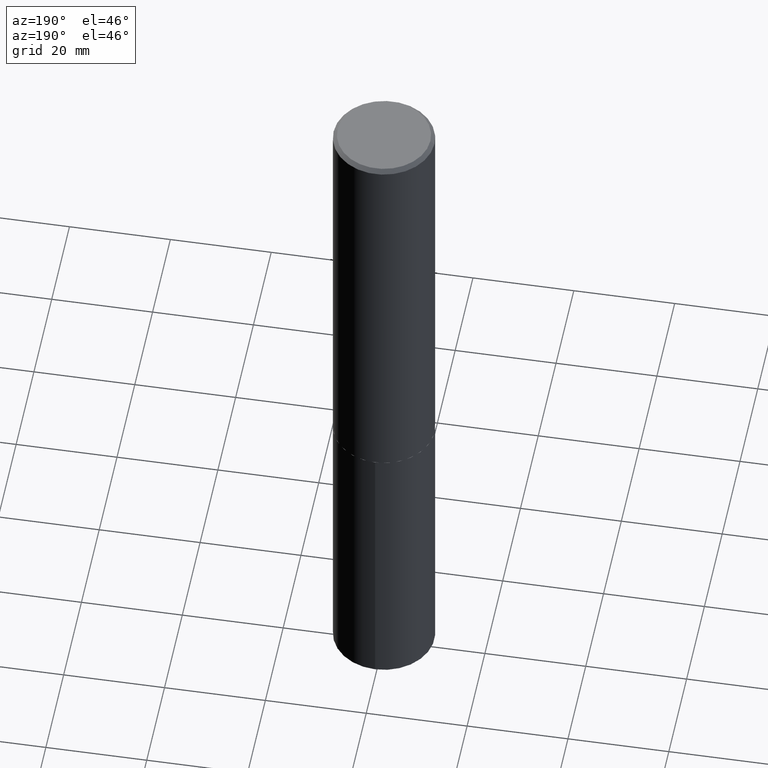
[diagram: clean part render]
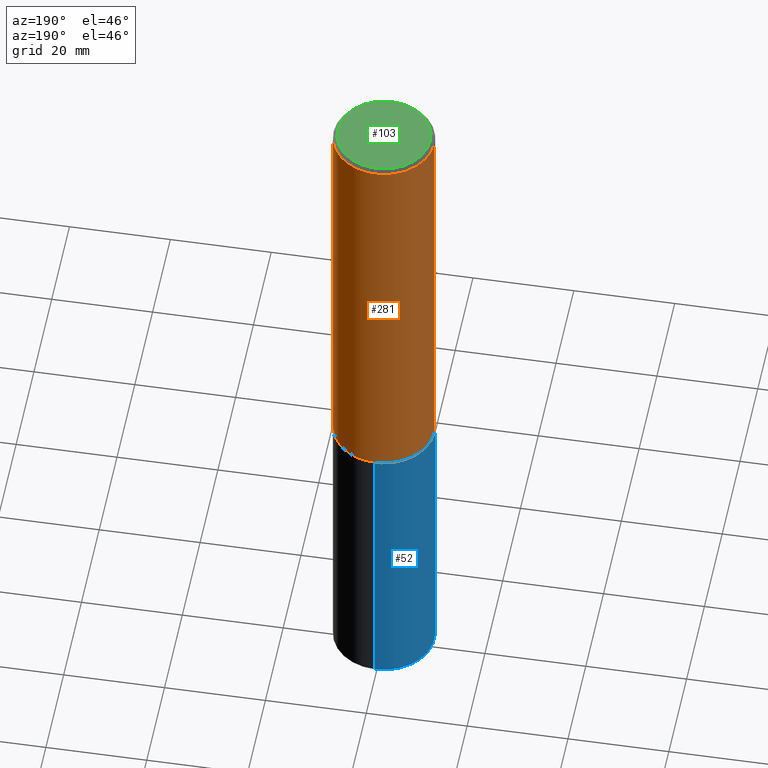
[diagram: same view with three faces highlighted in distinct colors, each labeled with its STEP entity id]
A machine part, auxiliary view with three faces highlighted in distinct colors.
Their STEP definitions:

[orange] entity #281 — the highlighted cylindrical surface (partial cylindrical patch) has radius 10 mm, axis along (-0, 0, 1).
#2 = CARTESIAN_POINT ( 'NONE',  ( 0.000000000000000000, 0.000000000000000000, 0.000000000000000000 ) ) ;
#20 = AXIS2_PLACEMENT_3D ( 'NONE', #166, #360, #193 ) ;
#25 = DIRECTION ( 'NONE',  ( -2.445468806185136597E-29, 3.491481338843145583E-15, 1.000000000000000000 ) ) ;
#33 = DIRECTION ( 'NONE',  ( 1.000000000000000000, -6.982962677686266711E-15, 4.876176775795935793E-29 ) ) ;
#46 = EDGE_CURVE ( 'NONE', #350, #285, #150, .T. ) ;
#47 = CARTESIAN_POINT ( 'NONE',  ( 0.3937000000000000499, -2.858301198043932317E-15, -0.03125000000000018735 ) ) ;
#81 = ORIENTED_EDGE ( 'NONE', *, *, #46, .T. ) ;
#87 = EDGE_CURVE ( 'NONE', #118, #114, #280, .T. ) ;
#97 = ORIENTED_EDGE ( 'NONE', *, *, #161, .T. ) ;
#105 = DIRECTION ( 'NONE',  ( -2.445468806185136597E-29, 3.491481338843145583E-15, 1.000000000000000000 ) ) ;
#114 = VERTEX_POINT ( 'NONE', #47 ) ;
#118 = VERTEX_POINT ( 'NONE', #195 ) ;
#131 = DIRECTION ( 'NONE',  ( 1.000000000000000000, -6.982962677686265922E-15, 0.000000000000000000 ) ) ;
#136 = AXIS2_PLACEMENT_3D ( 'NONE', #169, #25, #131 ) ;
#150 = LINE ( 'NONE', #208, #324 ) ;
#161 = EDGE_CURVE ( 'NONE', #118, #350, #230, .T. ) ;
#164 = CIRCLE ( 'NONE', #136, 0.3937000000000000499 ) ;
#166 = CARTESIAN_POINT ( 'NONE',  ( 7.880034134170364621E-29, -1.125060031815426445E-14, -3.222299999999999276 ) ) ;
#169 = CARTESIAN_POINT ( 'NONE',  ( 7.642090019328597407E-31, -1.091087918388489527E-16, -0.03125000000000018735 ) ) ;
#178 = ORIENTED_EDGE ( 'NONE', *, *, #205, .F. ) ;
#193 = DIRECTION ( 'NONE',  ( 1.000000000000000000, -6.982962677686266711E-15, 0.000000000000000000 ) ) ;
#195 = CARTESIAN_POINT ( 'NONE',  ( 0.3937000000000003830, -1.399979272435935082E-14, -3.222299999999999276 ) ) ;
#200 = CYLINDRICAL_SURFACE ( 'NONE', #286, 0.3937000000000002164 ) ;
#202 = FACE_OUTER_BOUND ( 'NONE', #207, .T. ) ;
#205 = EDGE_CURVE ( 'NONE', #114, #285, #164, .T. ) ;
#207 = EDGE_LOOP ( 'NONE', ( #97, #81, #178, #226 ) ) ;
#208 = CARTESIAN_POINT ( 'NONE',  ( -0.3937000000000002164, 2.797406750687515970E-15, -1.936584745033357576E-29 ) ) ;
#219 = CARTESIAN_POINT ( 'NONE',  ( 0.3937000000000002164, -2.749192406205084794E-15, 1.919750796630861012E-29 ) ) ;
#225 = CARTESIAN_POINT ( 'NONE',  ( -0.3937000000000000499, -2.882447804309040017E-15, -0.03125000000000018735 ) ) ;
#226 = ORIENTED_EDGE ( 'NONE', *, *, #87, .F. ) ;
#230 = CIRCLE ( 'NONE', #20, 0.3937000000000003830 ) ;
#258 = CARTESIAN_POINT ( 'NONE',  ( -0.3937000000000003830, -8.453193567466747297E-15, -3.222299999999999276 ) ) ;
#276 = DIRECTION ( 'NONE',  ( -2.445468806185136877E-29, 3.491481338843145188E-15, 1.000000000000000000 ) ) ;
#280 = LINE ( 'NONE', #219, #344 ) ;
#281 = ADVANCED_FACE ( 'NONE', ( #202 ), #200, .T. ) ;
#285 = VERTEX_POINT ( 'NONE', #225 ) ;
#286 = AXIS2_PLACEMENT_3D ( 'NONE', #2, #105, #33 ) ;
#293 = DIRECTION ( 'NONE',  ( -2.445468806185136877E-29, 3.491481338843145188E-15, 1.000000000000000000 ) ) ;
#324 = VECTOR ( 'NONE', #293, 39.37007874015748143 ) ;
#344 = VECTOR ( 'NONE', #276, 39.37007874015748143 ) ;
#350 = VERTEX_POINT ( 'NONE', #258 ) ;
#360 = DIRECTION ( 'NONE',  ( -2.445468806185136597E-29, 3.491481338843145583E-15, 1.000000000000000000 ) ) ;

[blue] entity #52 — the highlighted cylindrical surface (partial cylindrical patch) has radius 10 mm, axis along (-0, 0, 1).
#12 = DIRECTION ( 'NONE',  ( -6.982962677686265133E-15, -1.000000000000000000, 4.163344669033674845E-15 ) ) ;
#21 = DIRECTION ( 'NONE',  ( -2.445668549663379467E-29, 3.491195294813608803E-15, 1.000000000000000000 ) ) ;
#31 = AXIS2_PLACEMENT_3D ( 'NONE', #163, #21, #100 ) ;
#34 = ORIENTED_EDGE ( 'NONE', *, *, #135, .T. ) ;
#38 = VERTEX_POINT ( 'NONE', #322 ) ;
#42 = CARTESIAN_POINT ( 'NONE',  ( 7.881256868573458543E-29, -1.125234605882368832E-14, -3.222799999999999887 ) ) ;
#52 = ADVANCED_FACE ( 'NONE', ( #353 ), #268, .T. ) ;
#55 = VECTOR ( 'NONE', #57, 39.37007874015748143 ) ;
#57 = DIRECTION ( 'NONE',  ( -2.445668549663379467E-29, 3.491195294813608409E-15, 1.000000000000000000 ) ) ;
#66 = VERTEX_POINT ( 'NONE', #154 ) ;
#86 = ORIENTED_EDGE ( 'NONE', *, *, #273, .F. ) ;
#89 = EDGE_LOOP ( 'NONE', ( #86, #106, #34, #213 ) ) ;
#98 = VECTOR ( 'NONE', #134, 39.37007874015748143 ) ;
#100 = DIRECTION ( 'NONE',  ( -6.982962677686265133E-15, -1.000000000000000000, 2.775563112689116301E-15 ) ) ;
#106 = ORIENTED_EDGE ( 'NONE', *, *, #222, .T. ) ;
#115 = CIRCLE ( 'NONE', #31, 0.3937000000000000499 ) ;
#129 = CIRCLE ( 'NONE', #340, 0.3937000000000000499 ) ;
#133 = CARTESIAN_POINT ( 'NONE',  ( 2.797406750687620888E-15, 0.3936999999999807875, -5.511800000000000921 ) ) ;
#134 = DIRECTION ( 'NONE',  ( -2.445668549663379467E-29, 3.491195294813608409E-15, 1.000000000000000000 ) ) ;
#135 = EDGE_CURVE ( 'NONE', #234, #66, #246, .T. ) ;
#143 = CARTESIAN_POINT ( 'NONE',  ( 2.797406750687592884E-15, 0.3936999999999887812, -3.222800000000001663 ) ) ;
#154 = CARTESIAN_POINT ( 'NONE',  ( -2.749192406205004330E-15, -0.3937000000000113187, -3.222799999999998111 ) ) ;
#163 = CARTESIAN_POINT ( 'NONE',  ( 1.347939217875293275E-28, -1.924369208865203998E-14, -5.511800000000000033 ) ) ;
#175 = DIRECTION ( 'NONE',  ( -6.982962677686265133E-15, -1.000000000000000000, 4.163344669033674845E-15 ) ) ;
#211 = DIRECTION ( 'NONE',  ( -2.445668549663379467E-29, 3.491195294813608803E-15, 1.000000000000000000 ) ) ;
#213 = ORIENTED_EDGE ( 'NONE', *, *, #355, .F. ) ;
#222 = EDGE_CURVE ( 'NONE', #231, #234, #115, .T. ) ;
#231 = VERTEX_POINT ( 'NONE', #133 ) ;
#234 = VERTEX_POINT ( 'NONE', #345 ) ;
#246 = LINE ( 'NONE', #303, #98 ) ;
#268 = CYLINDRICAL_SURFACE ( 'NONE', #304, 0.3937000000000000499 ) ;
#273 = EDGE_CURVE ( 'NONE', #231, #38, #312, .T. ) ;
#282 = CARTESIAN_POINT ( 'NONE',  ( 7.881256868573458543E-29, -1.125234605882368832E-14, -3.222799999999999887 ) ) ;
#303 = CARTESIAN_POINT ( 'NONE',  ( -2.749192406205004330E-15, -0.3937000000000113187, -3.222799999999998111 ) ) ;
#304 = AXIS2_PLACEMENT_3D ( 'NONE', #42, #211, #12 ) ;
#309 = DIRECTION ( 'NONE',  ( -2.445668549663379467E-29, 3.491195294813608803E-15, 1.000000000000000000 ) ) ;
#312 = LINE ( 'NONE', #143, #55 ) ;
#322 = CARTESIAN_POINT ( 'NONE',  ( 2.797406750687648893E-15, 0.3936999999999887812, -3.222800000000001663 ) ) ;
#340 = AXIS2_PLACEMENT_3D ( 'NONE', #282, #309, #175 ) ;
#345 = CARTESIAN_POINT ( 'NONE',  ( -2.749192406204947927E-15, -0.3937000000000192568, -5.511799999999999145 ) ) ;
#353 = FACE_OUTER_BOUND ( 'NONE', #89, .T. ) ;
#355 = EDGE_CURVE ( 'NONE', #38, #66, #129, .T. ) ;

[green] entity #103 — the highlighted planar face has unit normal (0, -0, -1).
#68 = VERTEX_POINT ( 'NONE', #328 ) ;
#76 = CARTESIAN_POINT ( 'NONE',  ( -0.3624500000000000499, 2.585529218446811143E-15, 4.818985154626951724E-18 ) ) ;
#77 = FACE_OUTER_BOUND ( 'NONE', #109, .T. ) ;
#101 = DIRECTION ( 'NONE',  ( -1.000000000000000000, 6.982962677686265922E-15, -4.876176775795935793E-29 ) ) ;
#103 = ADVANCED_FACE ( 'NONE', ( #77 ), #338, .F. ) ;
#104 = CARTESIAN_POINT ( 'NONE',  ( -1.178467787315321927E-46, 1.682539673960461744E-32, 4.818985154644842843E-18 ) ) ;
#107 = DIRECTION ( 'NONE',  ( -2.445468806185136597E-29, 3.491481338843145583E-15, 1.000000000000000000 ) ) ;
#109 = EDGE_LOOP ( 'NONE', ( #261, #271 ) ) ;
#121 = VERTEX_POINT ( 'NONE', #76 ) ;
#132 = EDGE_CURVE ( 'NONE', #68, #121, #220, .T. ) ;
#176 = CIRCLE ( 'NONE', #196, 0.3624500000000000499 ) ;
#196 = AXIS2_PLACEMENT_3D ( 'NONE', #284, #107, #228 ) ;
#220 = CIRCLE ( 'NONE', #245, 0.3624500000000000499 ) ;
#224 = DIRECTION ( 'NONE',  ( 1.000000000000000000, -6.982962677686266711E-15, 4.876156645145296500E-29 ) ) ;
#228 = DIRECTION ( 'NONE',  ( 1.000000000000000000, -6.982962677686266711E-15, 4.876156645145296500E-29 ) ) ;
#245 = AXIS2_PLACEMENT_3D ( 'NONE', #104, #306, #224 ) ;
#261 = ORIENTED_EDGE ( 'NONE', *, *, #346, .T. ) ;
#271 = ORIENTED_EDGE ( 'NONE', *, *, #132, .T. ) ;
#284 = CARTESIAN_POINT ( 'NONE',  ( -1.178467787315321927E-46, 1.682539673960461744E-32, 4.818985154644842843E-18 ) ) ;
#306 = DIRECTION ( 'NONE',  ( -2.445468806185136597E-29, 3.491481338843145583E-15, 1.000000000000000000 ) ) ;
#328 = CARTESIAN_POINT ( 'NONE',  ( 0.3624500000000000499, -2.648337176426896411E-15, 4.818985154662952747E-18 ) ) ;
#338 = PLANE ( 'NONE',  #352 ) ;
#346 = EDGE_CURVE ( 'NONE', #121, #68, #176, .T. ) ;
#352 = AXIS2_PLACEMENT_3D ( 'NONE', #361, #366, #101 ) ;
#361 = CARTESIAN_POINT ( 'NONE',  ( -5.892338936576609633E-47, 8.412698369802308719E-33, 2.409492577322421421E-18 ) ) ;
#366 = DIRECTION ( 'NONE',  ( 2.438088387897960049E-29, -3.491481338843145188E-15, -1.000000000000000000 ) ) ;